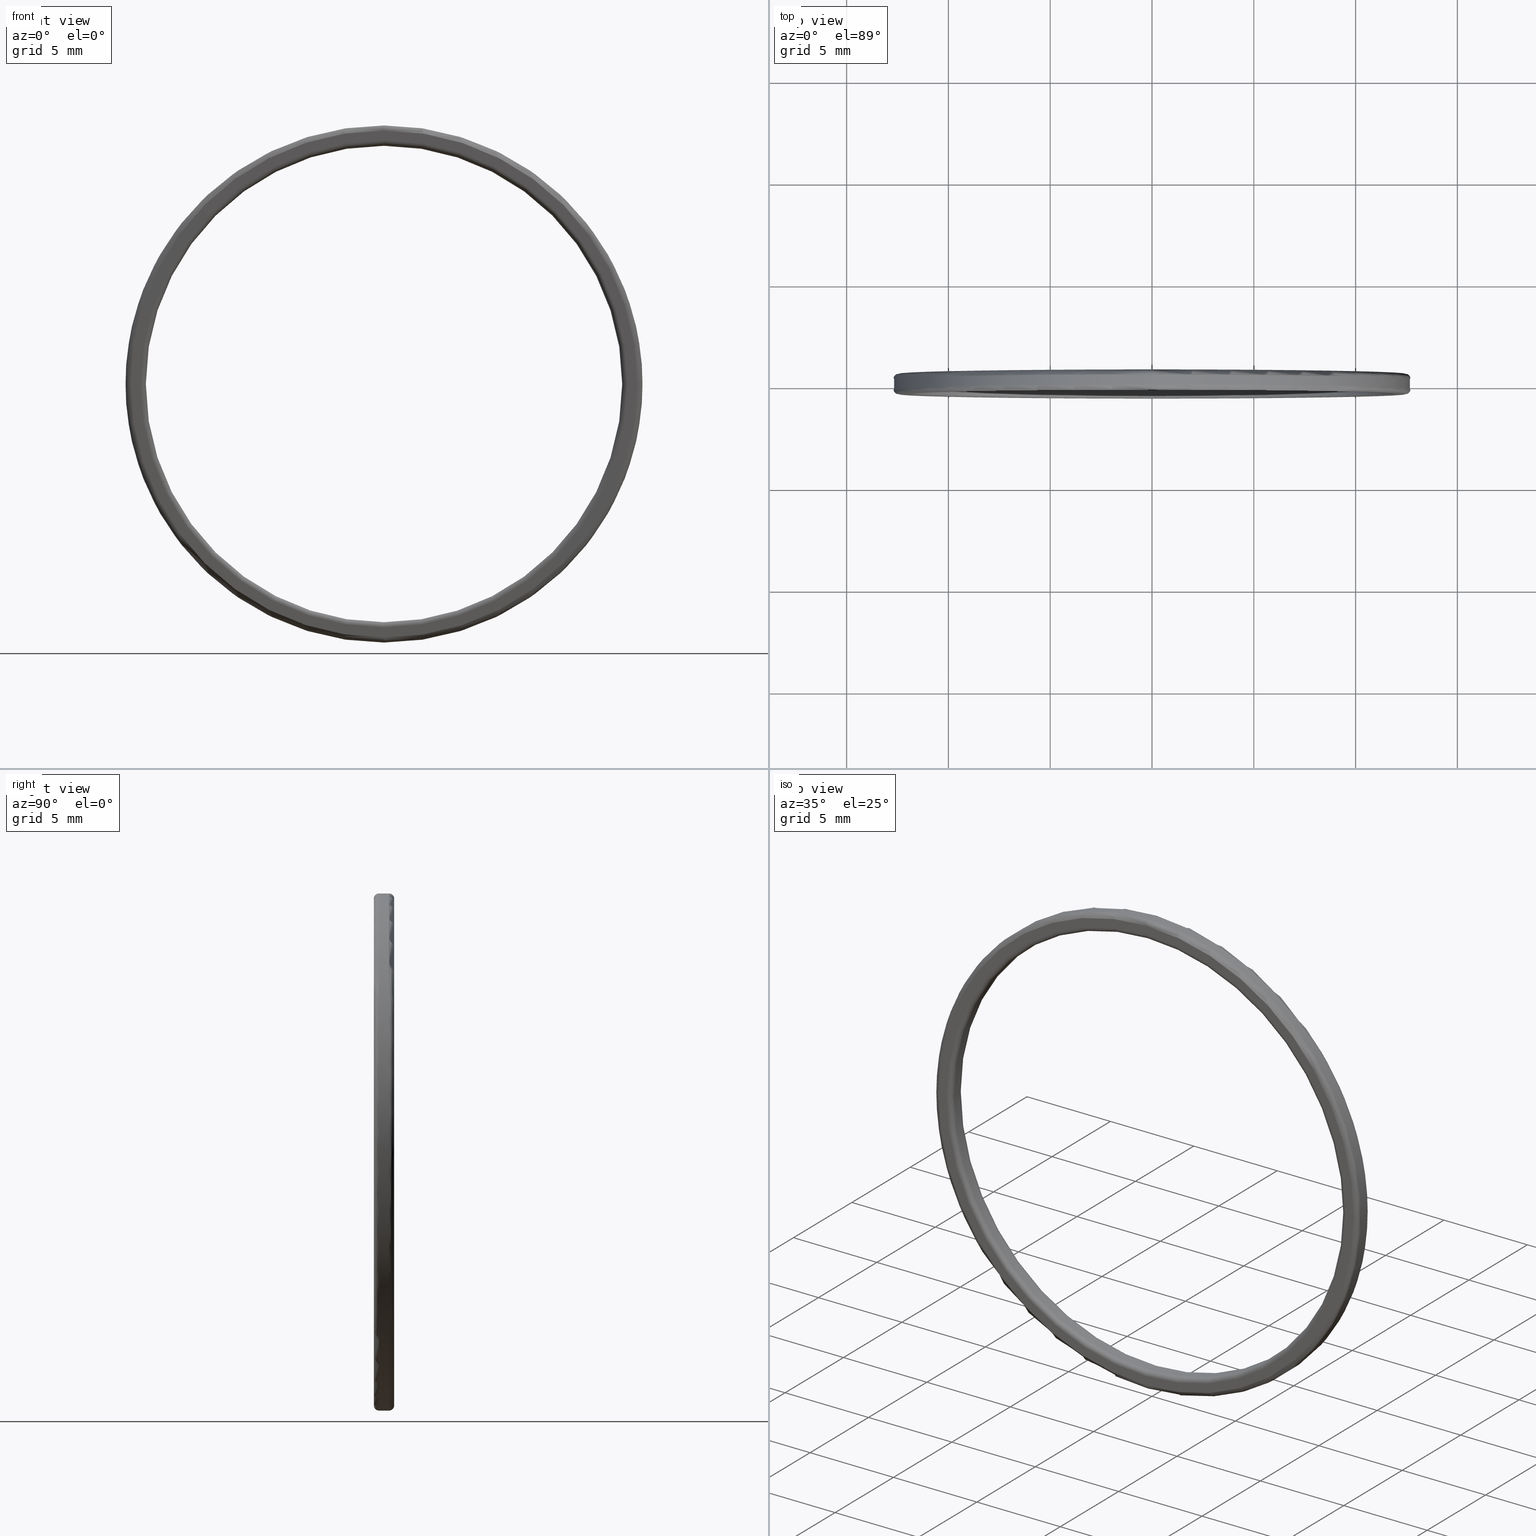
[diagram: canonical four-view strip — front | top / right | iso, engineering-drawing reading convention]
A machine part, canonical four-view strip (front | top / right | iso — engineering-drawing reading convention). The complete STEP part file that produces these views, byte-faithful:
ISO-10303-21;
HEADER;
FILE_DESCRIPTION (( 'STEP AP203' ),
    '1' );
FILE_NAME ('1.8.5.24_ZFK-D1.0_1.0Ӣ���ط�����Ȧ.STEP',
    '2021-07-10T05:48:21',
    ( 'China' ),
    ( 'Home' ),
    'SwSTEP 2.0',
    'SolidWorks 2018',
    '' );
FILE_SCHEMA (( 'CONFIG_CONTROL_DESIGN' ));
ENDSEC;

DATA;
#1 = CIRCLE ( 'NONE', #361, 11.94999999999999929 ) ;
#2 = ORIENTED_EDGE ( 'NONE', *, *, #273, .T. ) ;
#3 = DIRECTION ( 'NONE',  ( 0.0000000000000000000, 0.0000000000000000000, 1.000000000000000000 ) ) ;
#4 = DESIGN_CONTEXT ( 'detailed design', #188, 'design' ) ;
#5 = CARTESIAN_POINT ( 'NONE',  ( 0.0000000000000000000, 0.2499999999999985012, 0.0000000000000000000 ) ) ;
#6 = DIRECTION ( 'NONE',  ( 0.0000000000000000000, 0.0000000000000000000, -1.000000000000000000 ) ) ;
#7 = AXIS2_PLACEMENT_3D ( 'NONE', #276, #204, #415 ) ;
#9 = VERTEX_POINT ( 'NONE', #224 ) ;
#8 = DIRECTION ( 'NONE',  ( -1.000000000000000000, -0.0000000000000000000, -0.0000000000000000000 ) ) ;
#10 = CARTESIAN_POINT ( 'NONE',  ( 0.0000000000000000000, -0.2500000000000011102, 12.69999999999999929 ) ) ;
#11 = DIRECTION ( 'NONE',  ( 0.0000000000000000000, 0.0000000000000000000, 1.000000000000000000 ) ) ;
#12 = PERSON_AND_ORGANIZATION_ROLE ( 'design_supplier' ) ;
#13 = DIRECTION ( 'NONE',  ( -0.0000000000000000000, 1.000000000000000000, -0.0000000000000000000 ) ) ;
#14 = CIRCLE ( 'NONE', #152, 0.2500000000000002220 ) ;
#15 = ORIENTED_EDGE ( 'NONE', *, *, #187, .T. ) ;
#16 = DIRECTION ( 'NONE',  ( 0.0000000000000000000, -1.000000000000000000, 0.0000000000000000000 ) ) ;
#17 = DIRECTION ( 'NONE',  ( -0.0000000000000000000, 1.000000000000000000, -0.0000000000000000000 ) ) ;
#18 = TOROIDAL_SURFACE ( 'NONE', #342, 12.44999999999999929, 0.2500000000000000000 ) ;
#19 = ORIENTED_EDGE ( 'NONE', *, *, #56, .T. ) ;
#20 = CC_DESIGN_PERSON_AND_ORGANIZATION_ASSIGNMENT ( #61, #12, ( #222 ) ) ;
#21 = EDGE_CURVE ( 'NONE', #274, #229, #233, .T. ) ;
#22 = LINE ( 'NONE', #215, #425 ) ;
#23 = CARTESIAN_POINT ( 'NONE',  ( 0.0000000000000000000, 0.2499999999999985012, 12.69999999999999929 ) ) ;
#24 = ADVANCED_FACE ( 'NONE', ( #135 ), #103, .T. ) ;
#25 = CARTESIAN_POINT ( 'NONE',  ( 0.0000000000000000000, -0.2500000000000011102, 11.94999999999999929 ) ) ;
#26 = EDGE_CURVE ( 'NONE', #60, #33, #371, .T. ) ;
#27 = EDGE_LOOP ( 'NONE', ( #426, #409, #382, #141 ) ) ;
#28 = AXIS2_PLACEMENT_3D ( 'NONE', #396, #8, #253 ) ;
#29 = DIRECTION ( 'NONE',  ( -0.0000000000000000000, 1.000000000000000000, -0.0000000000000000000 ) ) ;
#30 = DATE_AND_TIME ( #189, #270 ) ;
#31 = APPROVAL ( #116, 'δָ��' ) ;
#32 = CIRCLE ( 'NONE', #373, 11.94999999999999929 ) ;
#33 = VERTEX_POINT ( 'NONE', #10 ) ;
#34 = AXIS2_PLACEMENT_3D ( 'NONE', #139, #317, #392 ) ;
#35 = CC_DESIGN_APPROVAL ( #269, ( #385 ) ) ;
#36 = CARTESIAN_POINT ( 'NONE',  ( 1.555301434917138433E-15, 4.847222222222231203, -12.69999999999999929 ) ) ;
#37 = TOROIDAL_SURFACE ( 'NONE', #84, 11.94999999999999929, 0.2500000000000000000 ) ;
#38 = ORIENTED_EDGE ( 'NONE', *, *, #97, .F. ) ;
#39 =( NAMED_UNIT ( * ) PLANE_ANGLE_UNIT ( ) SI_UNIT ( $, .RADIAN. ) );
#40 = EDGE_CURVE ( 'NONE', #251, #177, #22, .T. ) ;
#41 = COORDINATED_UNIVERSAL_TIME_OFFSET ( 8, 0, .AHEAD. ) ;
#43 = FACE_OUTER_BOUND ( 'NONE', #316, .T. ) ;
#42 = APPLICATION_PROTOCOL_DEFINITION ( 'international standard', 'config_control_design', 1994, #264 ) ;
#44 = ORIENTED_EDGE ( 'NONE', *, *, #378, .F. ) ;
#45 = DATE_TIME_ROLE ( 'classification_date' ) ;
#46 = EDGE_CURVE ( 'NONE', #213, #348, #297, .T. ) ;
#47 = MECHANICAL_CONTEXT ( 'NONE', #264, 'mechanical' ) ;
#48 = APPROVAL_STATUS ( 'not_yet_approved' ) ;
#49 = CARTESIAN_POINT ( 'NONE',  ( 11.69999999999999929, 0.4999999999999985012, 0.0000000000000000000 ) ) ;
#50 = CIRCLE ( 'NONE', #53, 12.69999999999999929 ) ;
#51 = ORIENTED_EDGE ( 'NONE', *, *, #267, .T. ) ;
#52 = ORIENTED_EDGE ( 'NONE', *, *, #367, .F. ) ;
#53 = AXIS2_PLACEMENT_3D ( 'NONE', #437, #362, #11 ) ;
#54 = PERSON_AND_ORGANIZATION ( #423, #154 ) ;
#55 = ORIENTED_EDGE ( 'NONE', *, *, #422, .T. ) ;
#56 = EDGE_CURVE ( 'NONE', #348, #213, #1, .T. ) ;
#57 = CIRCLE ( 'NONE', #281, 11.69999999999999929 ) ;
#58 = CIRCLE ( 'NONE', #350, 11.69999999999999929 ) ;
#60 = VERTEX_POINT ( 'NONE', #190 ) ;
#59 = DIRECTION ( 'NONE',  ( -0.0000000000000000000, 1.000000000000000000, -0.0000000000000000000 ) ) ;
#61 = PERSON_AND_ORGANIZATION ( #423, #154 ) ;
#62 = DIRECTION ( 'NONE',  ( 1.000000000000000000, 0.0000000000000000000, -1.224646799147353207E-16 ) ) ;
#63 = ORIENTED_EDGE ( 'NONE', *, *, #306, .T. ) ;
#64 = AXIS2_PLACEMENT_3D ( 'NONE', #379, #165, #412 ) ;
#65 = DIRECTION ( 'NONE',  ( 1.224646799147349509E-16, 0.0000000000000000000, -1.000000000000000000 ) ) ;
#66 = EDGE_CURVE ( 'NONE', #159, #33, #325, .T. ) ;
#67 = VERTEX_POINT ( 'NONE', #254 ) ;
#68 = ORIENTED_EDGE ( 'NONE', *, *, #205, .T. ) ;
#69 = DIRECTION ( 'NONE',  ( 0.0000000000000000000, -1.000000000000000000, 0.0000000000000000000 ) ) ;
#70 = APPROVAL_DATE_TIME ( #119, #269 ) ;
#71 = CIRCLE ( 'NONE', #168, 0.2500000000000002220 ) ;
#72 = ORIENTED_EDGE ( 'NONE', *, *, #46, .T. ) ;
#73 = PERSON_AND_ORGANIZATION_ROLE ( 'classification_officer' ) ;
#74 = CC_DESIGN_APPROVAL ( #214, ( #222 ) ) ;
#75 = EDGE_CURVE ( 'NONE', #9, #177, #58, .T. ) ;
#76 = FACE_OUTER_BOUND ( 'NONE', #78, .T. ) ;
#77 = ORIENTED_EDGE ( 'NONE', *, *, #66, .F. ) ;
#78 = EDGE_LOOP ( 'NONE', ( #268, #120, #193, #171 ) ) ;
#79 = EDGE_CURVE ( 'NONE', #229, #433, #394, .T. ) ;
#80 = CARTESIAN_POINT ( 'NONE',  ( 0.0000000000000000000, 0.2499999999999985012, -12.44999999999999929 ) ) ;
#81 = COORDINATED_UNIVERSAL_TIME_OFFSET ( 8, 0, .AHEAD. ) ;
#82 = ORIENTED_EDGE ( 'NONE', *, *, #107, .T. ) ;
#83 = CC_DESIGN_PERSON_AND_ORGANIZATION_ASSIGNMENT ( #343, #73, ( #99 ) ) ;
#84 = AXIS2_PLACEMENT_3D ( 'NONE', #235, #127, #198 ) ;
#85 = PRODUCT_DEFINITION_SHAPE ( 'NONE', 'NONE',  #385 ) ;
#86 = CIRCLE ( 'NONE', #369, 12.44999999999999929 ) ;
#87 = DIRECTION ( 'NONE',  ( 0.0000000000000000000, 0.0000000000000000000, -1.000000000000000000 ) ) ;
#88 = ORIENTED_EDGE ( 'NONE', *, *, #79, .F. ) ;
#89 = ORIENTED_EDGE ( 'NONE', *, *, #435, .T. ) ;
#90 = DIRECTION ( 'NONE',  ( 0.0000000000000000000, -1.000000000000000000, 0.0000000000000000000 ) ) ;
#91 = CC_DESIGN_PERSON_AND_ORGANIZATION_ASSIGNMENT ( #370, #332, ( #222 ) ) ;
#92 = DIRECTION ( 'NONE',  ( 0.0000000000000000000, 0.0000000000000000000, 1.000000000000000000 ) ) ;
#93 = AXIS2_PLACEMENT_3D ( 'NONE', #96, #454, #243 ) ;
#94 = CIRCLE ( 'NONE', #453, 0.2500000000000002220 ) ;
#95 = CLOSED_SHELL ( 'NONE', ( #219, #315, #106, #113, #328, #319, #236, #212, #321, #138, #172, #161, #250, #24 ) ) ;
#96 = CARTESIAN_POINT ( 'NONE',  ( 0.0000000000000000000, 0.2499999999999985012, 0.0000000000000000000 ) ) ;
#97 = EDGE_CURVE ( 'NONE', #449, #9, #406, .T. ) ;
#98 = ADVANCED_BREP_SHAPE_REPRESENTATION ( '1.8.5.24_ZFK-D1.0_1.0Ӣ���ط�����Ȧ', ( #185, #145 ), #248 ) ;
#99 = SECURITY_CLASSIFICATION ( '', '', #293 ) ;
#100 = CALENDAR_DATE ( 2021, 10, 7 ) ;
#101 = DIRECTION ( 'NONE',  ( 0.0000000000000000000, 0.0000000000000000000, 1.000000000000000000 ) ) ;
#102 = CIRCLE ( 'NONE', #303, 12.44999999999999929 ) ;
#103 = TOROIDAL_SURFACE ( 'NONE', #439, 12.44999999999999929, 0.2500000000000000000 ) ;
#104 = AXIS2_PLACEMENT_3D ( 'NONE', #105, #16, #186 ) ;
#105 = CARTESIAN_POINT ( 'NONE',  ( 0.0000000000000000000, -0.5000000000000015543, 0.0000000000000000000 ) ) ;
#106 = ADVANCED_FACE ( 'NONE', ( #301 ), #18, .T. ) ;
#107 = EDGE_CURVE ( 'NONE', #251, #123, #94, .T. ) ;
#108 = CARTESIAN_POINT ( 'NONE',  ( 0.0000000000000000000, 4.847222222222231203, 0.0000000000000000000 ) ) ;
#110 = VERTEX_POINT ( 'NONE', #23 ) ;
#109 = DIRECTION ( 'NONE',  ( 0.0000000000000000000, 0.0000000000000000000, -1.000000000000000000 ) ) ;
#111 = DIRECTION ( 'NONE',  ( 0.0000000000000000000, -1.000000000000000000, 0.0000000000000000000 ) ) ;
#112 = EDGE_LOOP ( 'NONE', ( #150, #44, #305, #52 ) ) ;
#113 = ADVANCED_FACE ( 'NONE', ( #130 ), #37, .T. ) ;
#114 = DIRECTION ( 'NONE',  ( 0.0000000000000000000, 0.0000000000000000000, -1.000000000000000000 ) ) ;
#115 = AXIS2_PLACEMENT_3D ( 'NONE', #336, #111, #144 ) ;
#116 = APPROVAL_STATUS ( 'not_yet_approved' ) ;
#117 = EDGE_LOOP ( 'NONE', ( #19, #72 ) ) ;
#118 = DIRECTION ( 'NONE',  ( -0.0000000000000000000, 1.000000000000000000, -0.0000000000000000000 ) ) ;
#119 = DATE_AND_TIME ( #100, #266 ) ;
#120 = ORIENTED_EDGE ( 'NONE', *, *, #354, .T. ) ;
#121 = ORIENTED_EDGE ( 'NONE', *, *, #378, .T. ) ;
#122 = FACE_OUTER_BOUND ( 'NONE', #191, .T. ) ;
#123 = VERTEX_POINT ( 'NONE', #265 ) ;
#124 = CARTESIAN_POINT ( 'NONE',  ( 1.463452924981086874E-15, -0.2500000000000011102, -11.94999999999999929 ) ) ;
#125 = AXIS2_PLACEMENT_3D ( 'NONE', #196, #17, #438 ) ;
#126 = DIRECTION ( 'NONE',  ( -0.0000000000000000000, 1.000000000000000000, -0.0000000000000000000 ) ) ;
#127 = DIRECTION ( 'NONE',  ( -0.0000000000000000000, 1.000000000000000000, -0.0000000000000000000 ) ) ;
#128 = LOCAL_TIME ( 13, 48, 21.00000000000000000, #41 ) ;
#129 = CARTESIAN_POINT ( 'NONE',  ( 0.0000000000000000000, 4.847222222222231203, 0.0000000000000000000 ) ) ;
#130 = FACE_OUTER_BOUND ( 'NONE', #402, .T. ) ;
#131 = DIRECTION ( 'NONE',  ( 0.0000000000000000000, -1.000000000000000000, 0.0000000000000000000 ) ) ;
#132 = CARTESIAN_POINT ( 'NONE',  ( 0.0000000000000000000, -0.2500000000000011102, 11.69999999999999929 ) ) ;
#133 = COORDINATED_UNIVERSAL_TIME_OFFSET ( 8, 0, .AHEAD. ) ;
#134 = AXIS2_PLACEMENT_3D ( 'NONE', #381, #62, #312 ) ;
#135 = FACE_OUTER_BOUND ( 'NONE', #112, .T. ) ;
#136 = DIRECTION ( 'NONE',  ( -0.0000000000000000000, 1.000000000000000000, -0.0000000000000000000 ) ) ;
#137 = CARTESIAN_POINT ( 'NONE',  ( 1.539993349927796539E-15, 0.4999999999999985012, 12.44999999999999929 ) ) ;
#138 = ADVANCED_FACE ( 'NONE', ( #192, #388 ), #201, .F. ) ;
#139 = CARTESIAN_POINT ( 'NONE',  ( 0.0000000000000000000, -0.2500000000000011102, 0.0000000000000000000 ) ) ;
#140 = ORIENTED_EDGE ( 'NONE', *, *, #107, .F. ) ;
#141 = ORIENTED_EDGE ( 'NONE', *, *, #46, .F. ) ;
#142 = DIRECTION ( 'NONE',  ( -0.0000000000000000000, 1.000000000000000000, -0.0000000000000000000 ) ) ;
#143 = CC_DESIGN_SECURITY_CLASSIFICATION ( #99, ( #222 ) ) ;
#144 = DIRECTION ( 'NONE',  ( 0.0000000000000000000, 0.0000000000000000000, -1.000000000000000000 ) ) ;
#145 = AXIS2_PLACEMENT_3D ( 'NONE', #288, #223, #400 ) ;
#146 = DIRECTION ( 'NONE',  ( -1.000000000000000000, 0.0000000000000000000, 0.0000000000000000000 ) ) ;
#147 = PERSON_AND_ORGANIZATION ( #423, #154 ) ;
#148 = VECTOR ( 'NONE', #324, 1000.000000000000000 ) ;
#149 = DIRECTION ( 'NONE',  ( 0.0000000000000000000, 0.0000000000000000000, -1.000000000000000000 ) ) ;
#150 = ORIENTED_EDGE ( 'NONE', *, *, #234, .F. ) ;
#151 =( NAMED_UNIT ( * ) SI_UNIT ( $, .STERADIAN. ) SOLID_ANGLE_UNIT ( ) );
#152 = AXIS2_PLACEMENT_3D ( 'NONE', #366, #339, #368 ) ;
#153 = CARTESIAN_POINT ( 'NONE',  ( 0.0000000000000000000, 0.2499999999999985012, 11.69999999999999929 ) ) ;
#154 = ORGANIZATION ( 'δָ��', 'δָ��', '' ) ;
#155 = VERTEX_POINT ( 'NONE', #300 ) ;
#156 = EDGE_LOOP ( 'NONE', ( #38, #51, #272, #55 ) ) ;
#157 = CARTESIAN_POINT ( 'NONE',  ( 0.0000000000000000000, 4.847222222222231203, 12.69999999999999929 ) ) ;
#158 = COORDINATED_UNIVERSAL_TIME_OFFSET ( 8, 0, .AHEAD. ) ;
#159 = VERTEX_POINT ( 'NONE', #237 ) ;
#160 = EDGE_CURVE ( 'NONE', #60, #67, #86, .T. ) ;
#161 = ADVANCED_FACE ( 'NONE', ( #375 ), #353, .T. ) ;
#162 = DIRECTION ( 'NONE',  ( 0.0000000000000000000, 0.0000000000000000000, 1.000000000000000000 ) ) ;
#163 = CYLINDRICAL_SURFACE ( 'NONE', #320, 11.69999999999999929 ) ;
#164 = EDGE_LOOP ( 'NONE', ( #285, #15, #440, #414 ) ) ;
#165 = DIRECTION ( 'NONE',  ( -0.0000000000000000000, 1.000000000000000000, -0.0000000000000000000 ) ) ;
#166 = CC_DESIGN_APPROVAL ( #31, ( #99 ) ) ;
#167 = CARTESIAN_POINT ( 'NONE',  ( 0.0000000000000000000, 0.2499999999999985012, 0.0000000000000000000 ) ) ;
#168 = AXIS2_PLACEMENT_3D ( 'NONE', #210, #180, #286 ) ;
#169 = PERSON_AND_ORGANIZATION ( #423, #154 ) ;
#170 = FACE_OUTER_BOUND ( 'NONE', #448, .T. ) ;
#171 = ORIENTED_EDGE ( 'NONE', *, *, #390, .F. ) ;
#172 = ADVANCED_FACE ( 'NONE', ( #220 ), #283, .T. ) ;
#173 = CARTESIAN_POINT ( 'NONE',  ( 0.0000000000000000000, -0.2500000000000011102, 0.0000000000000000000 ) ) ;
#174 = AXIS2_PLACEMENT_3D ( 'NONE', #129, #29, #280 ) ;
#175 = TOROIDAL_SURFACE ( 'NONE', #93, 12.44999999999999929, 0.2500000000000000000 ) ;
#176 = ORIENTED_EDGE ( 'NONE', *, *, #26, .T. ) ;
#177 = VERTEX_POINT ( 'NONE', #153 ) ;
#178 = DIRECTION ( 'NONE',  ( -0.0000000000000000000, 1.000000000000000000, -0.0000000000000000000 ) ) ;
#179 = DIRECTION ( 'NONE',  ( 0.0000000000000000000, 0.0000000000000000000, -1.000000000000000000 ) ) ;
#180 = DIRECTION ( 'NONE',  ( 1.000000000000000000, 0.0000000000000000000, -1.224646799147353207E-16 ) ) ;
#181 = DIRECTION ( 'NONE',  ( 0.0000000000000000000, 0.0000000000000000000, -1.000000000000000000 ) ) ;
#182 = CIRCLE ( 'NONE', #225, 11.69999999999999929 ) ;
#183 = ORIENTED_EDGE ( 'NONE', *, *, #410, .T. ) ;
#184 = CARTESIAN_POINT ( 'NONE',  ( 0.0000000000000000000, -0.2500000000000011102, 12.44999999999999929 ) ) ;
#185 = MANIFOLD_SOLID_BREP ( 'Բ��1', #95 ) ;
#186 = DIRECTION ( 'NONE',  ( 0.0000000000000000000, 0.0000000000000000000, 1.000000000000000000 ) ) ;
#187 = EDGE_CURVE ( 'NONE', #67, #159, #14, .T. ) ;
#188 = APPLICATION_CONTEXT ( 'configuration controlled 3d designs of mechanical parts and assemblies' ) ;
#189 = CALENDAR_DATE ( 2021, 10, 7 ) ;
#190 = CARTESIAN_POINT ( 'NONE',  ( 0.0000000000000000000, -0.5000000000000015543, 12.44999999999999929 ) ) ;
#191 = EDGE_LOOP ( 'NONE', ( #347, #341 ) ) ;
#192 = FACE_BOUND ( 'NONE', #117, .T. ) ;
#193 = ORIENTED_EDGE ( 'NONE', *, *, #56, .F. ) ;
#194 = CC_DESIGN_PERSON_AND_ORGANIZATION_ASSIGNMENT ( #169, #404, ( #311 ) ) ;
#195 = EDGE_CURVE ( 'NONE', #449, #155, #419, .T. ) ;
#196 = CARTESIAN_POINT ( 'NONE',  ( 0.0000000000000000000, -0.2500000000000011102, 0.0000000000000000000 ) ) ;
#197 = LINE ( 'NONE', #157, #432 ) ;
#198 = DIRECTION ( 'NONE',  ( 0.0000000000000000000, 0.0000000000000000000, 1.000000000000000000 ) ) ;
#199 = ORIENTED_EDGE ( 'NONE', *, *, #262, .T. ) ;
#200 = AXIS2_PLACEMENT_3D ( 'NONE', #357, #389, #424 ) ;
#201 = PLANE ( 'NONE',  #407 ) ;
#202 = APPROVAL_PERSON_ORGANIZATION ( #455, #214, #298 ) ;
#203 = ORIENTED_EDGE ( 'NONE', *, *, #410, .F. ) ;
#204 = DIRECTION ( 'NONE',  ( -0.0000000000000000000, 1.000000000000000000, 0.0000000000000000000 ) ) ;
#205 = EDGE_CURVE ( 'NONE', #33, #110, #197, .T. ) ;
#206 = CALENDAR_DATE ( 2021, 10, 7 ) ;
#207 = CIRCLE ( 'NONE', #28, 0.2500000000000002220 ) ;
#208 = EDGE_LOOP ( 'NONE', ( #263, #240, #68, #331 ) ) ;
#209 = CARTESIAN_POINT ( 'NONE',  ( 0.0000000000000000000, 0.2499999999999985012, 0.0000000000000000000 ) ) ;
#210 = CARTESIAN_POINT ( 'NONE',  ( 1.463452924981086874E-15, 0.2499999999999985012, 11.94999999999999929 ) ) ;
#211 = CARTESIAN_POINT ( 'NONE',  ( 0.0000000000000000000, 4.847222222222231203, 0.0000000000000000000 ) ) ;
#212 = ADVANCED_FACE ( 'NONE', ( #314, #122 ), #242, .F. ) ;
#213 = VERTEX_POINT ( 'NONE', #450 ) ;
#214 = APPROVAL ( #48, 'δָ��' ) ;
#215 = CARTESIAN_POINT ( 'NONE',  ( 0.0000000000000000000, 4.847222222222231203, 11.69999999999999929 ) ) ;
#216 = AXIS2_PLACEMENT_3D ( 'NONE', #184, #146, #299 ) ;
#217 = APPROVAL_STATUS ( 'not_yet_approved' ) ;
#218 = PERSON_AND_ORGANIZATION_ROLE ( 'creator' ) ;
#219 = ADVANCED_FACE ( 'NONE', ( #364 ), #175, .T. ) ;
#220 = FACE_OUTER_BOUND ( 'NONE', #241, .T. ) ;
#221 = DATE_TIME_ROLE ( 'creation_date' ) ;
#222 = PRODUCT_DEFINITION_FORMATION_WITH_SPECIFIED_SOURCE ( '�κ�', '', #311, .NOT_KNOWN. ) ;
#223 = DIRECTION ( 'NONE',  ( 0.0000000000000000000, 0.0000000000000000000, 1.000000000000000000 ) ) ;
#224 = CARTESIAN_POINT ( 'NONE',  ( 1.432836755002403087E-15, 0.2499999999999985012, -11.69999999999999929 ) ) ;
#225 = AXIS2_PLACEMENT_3D ( 'NONE', #258, #118, #335 ) ;
#226 = CARTESIAN_POINT ( 'NONE',  ( 0.0000000000000000000, 0.2499999999999985012, 0.0000000000000000000 ) ) ;
#227 = CYLINDRICAL_SURFACE ( 'NONE', #441, 11.69999999999999929 ) ;
#228 = ORIENTED_EDGE ( 'NONE', *, *, #205, .F. ) ;
#229 = VERTEX_POINT ( 'NONE', #247 ) ;
#230 = CC_DESIGN_PERSON_AND_ORGANIZATION_ASSIGNMENT ( #349, #218, ( #385 ) ) ;
#231 = APPROVAL_DATE_TIME ( #358, #31 ) ;
#232 = CIRCLE ( 'NONE', #417, 11.94999999999999929 ) ;
#233 = CIRCLE ( 'NONE', #334, 12.44999999999999929 ) ;
#234 = EDGE_CURVE ( 'NONE', #274, #110, #457, .T. ) ;
#235 = CARTESIAN_POINT ( 'NONE',  ( 0.0000000000000000000, -0.2500000000000011102, 0.0000000000000000000 ) ) ;
#236 = ADVANCED_FACE ( 'NONE', ( #401 ), #296, .T. ) ;
#237 = CARTESIAN_POINT ( 'NONE',  ( 1.555301434917138433E-15, -0.2500000000000011102, -12.69999999999999929 ) ) ;
#238 = CIRCLE ( 'NONE', #403, 12.69999999999999929 ) ;
#239 = CARTESIAN_POINT ( 'NONE',  ( 0.0000000000000000000, -0.2500000000000011102, 0.0000000000000000000 ) ) ;
#240 = ORIENTED_EDGE ( 'NONE', *, *, #66, .T. ) ;
#241 = EDGE_LOOP ( 'NONE', ( #443, #340, #82, #360 ) ) ;
#242 = PLANE ( 'NONE',  #7 ) ;
#243 = DIRECTION ( 'NONE',  ( 0.0000000000000000000, 0.0000000000000000000, -1.000000000000000000 ) ) ;
#244 = COORDINATED_UNIVERSAL_TIME_OFFSET ( 8, 0, .AHEAD. ) ;
#245 = CIRCLE ( 'NONE', #34, 11.69999999999999929 ) ;
#246 = ORIENTED_EDGE ( 'NONE', *, *, #21, .T. ) ;
#247 = CARTESIAN_POINT ( 'NONE',  ( 0.0000000000000000000, 0.4999999999999985012, -12.44999999999999929 ) ) ;
#248 =( GEOMETRIC_REPRESENTATION_CONTEXT ( 3 ) GLOBAL_UNCERTAINTY_ASSIGNED_CONTEXT ( ( #261 ) ) GLOBAL_UNIT_ASSIGNED_CONTEXT ( ( #399, #39, #151 ) ) REPRESENTATION_CONTEXT ( 'NONE', 'WORKASPACE' ) );
#249 = ORIENTED_EDGE ( 'NONE', *, *, #40, .F. ) ;
#250 = ADVANCED_FACE ( 'NONE', ( #330 ), #413, .T. ) ;
#251 = VERTEX_POINT ( 'NONE', #132 ) ;
#252 = DIRECTION ( 'NONE',  ( 0.0000000000000000000, -1.000000000000000000, 0.0000000000000000000 ) ) ;
#253 = DIRECTION ( 'NONE',  ( 0.0000000000000000000, 0.0000000000000000000, 1.000000000000000000 ) ) ;
#254 = CARTESIAN_POINT ( 'NONE',  ( 1.539993349927796539E-15, -0.5000000000000015543, -12.44999999999999929 ) ) ;
#255 = DATE_AND_TIME ( #313, #128 ) ;
#256 = CIRCLE ( 'NONE', #104, 12.44999999999999929 ) ;
#257 = EDGE_LOOP ( 'NONE', ( #372, #395, #203, #88 ) ) ;
#258 = CARTESIAN_POINT ( 'NONE',  ( 0.0000000000000000000, 0.2499999999999985012, 0.0000000000000000000 ) ) ;
#259 = AXIS2_PLACEMENT_3D ( 'NONE', #80, #344, #446 ) ;
#260 = CARTESIAN_POINT ( 'NONE',  ( 1.432836755002403087E-15, -0.2500000000000011102, -11.69999999999999929 ) ) ;
#261 = UNCERTAINTY_MEASURE_WITH_UNIT (LENGTH_MEASURE( 1.000000000000000082E-05 ), #399, 'distance_accuracy_value', 'NONE');
#262 = EDGE_CURVE ( 'NONE', #123, #155, #32, .T. ) ;
#263 = ORIENTED_EDGE ( 'NONE', *, *, #363, .F. ) ;
#264 = APPLICATION_CONTEXT ( 'configuration controlled 3d designs of mechanical parts and assemblies' ) ;
#265 = CARTESIAN_POINT ( 'NONE',  ( 0.0000000000000000000, -0.5000000000000013323, 11.94999999999999929 ) ) ;
#266 = LOCAL_TIME ( 13, 48, 21.00000000000000000, #158 ) ;
#267 = EDGE_CURVE ( 'NONE', #449, #251, #245, .T. ) ;
#268 = ORIENTED_EDGE ( 'NONE', *, *, #422, .F. ) ;
#269 = APPROVAL ( #217, 'δָ��' ) ;
#270 = LOCAL_TIME ( 13, 48, 21.00000000000000000, #81 ) ;
#271 = CIRCLE ( 'NONE', #445, 12.69999999999999929 ) ;
#272 = ORIENTED_EDGE ( 'NONE', *, *, #40, .T. ) ;
#273 = EDGE_CURVE ( 'NONE', #251, #449, #57, .T. ) ;
#274 = VERTEX_POINT ( 'NONE', #137 ) ;
#275 = DIRECTION ( 'NONE',  ( -0.0000000000000000000, 1.000000000000000000, -0.0000000000000000000 ) ) ;
#276 = CARTESIAN_POINT ( 'NONE',  ( 11.69999999999999929, -0.5000000000000015543, 0.0000000000000000000 ) ) ;
#277 = DATE_AND_TIME ( #206, #452 ) ;
#278 = EDGE_LOOP ( 'NONE', ( #326, #416, #176, #77 ) ) ;
#279 = ORIENTED_EDGE ( 'NONE', *, *, #97, .T. ) ;
#280 = DIRECTION ( 'NONE',  ( 0.0000000000000000000, 0.0000000000000000000, 1.000000000000000000 ) ) ;
#281 = AXIS2_PLACEMENT_3D ( 'NONE', #173, #391, #101 ) ;
#282 = DIRECTION ( 'NONE',  ( 0.0000000000000000000, 0.0000000000000000000, -1.000000000000000000 ) ) ;
#283 = TOROIDAL_SURFACE ( 'NONE', #431, 11.94999999999999929, 0.2500000000000000000 ) ;
#285 = ORIENTED_EDGE ( 'NONE', *, *, #421, .F. ) ;
#284 = CARTESIAN_POINT ( 'NONE',  ( 1.555301434917138433E-15, 0.2499999999999985012, -12.69999999999999929 ) ) ;
#286 = DIRECTION ( 'NONE',  ( -1.224646799147349509E-16, 0.0000000000000000000, -1.000000000000000000 ) ) ;
#287 = DIRECTION ( 'NONE',  ( 0.0000000000000000000, 0.0000000000000000000, 1.000000000000000000 ) ) ;
#288 = CARTESIAN_POINT ( 'NONE',  ( 0.0000000000000000000, 0.0000000000000000000, 0.0000000000000000000 ) ) ;
#289 = ORIENTED_EDGE ( 'NONE', *, *, #195, .T. ) ;
#290 = EDGE_LOOP ( 'NONE', ( #199, #63 ) ) ;
#291 = CARTESIAN_POINT ( 'NONE',  ( 0.0000000000000000000, 0.2499999999999985012, 0.0000000000000000000 ) ) ;
#292 = CARTESIAN_POINT ( 'NONE',  ( 0.0000000000000000000, 0.2499999999999985012, 0.0000000000000000000 ) ) ;
#293 = SECURITY_CLASSIFICATION_LEVEL ( 'unclassified' ) ;
#294 = DIRECTION ( 'NONE',  ( -0.0000000000000000000, 1.000000000000000000, -0.0000000000000000000 ) ) ;
#295 = LOCAL_TIME ( 13, 48, 21.00000000000000000, #133 ) ;
#296 = CYLINDRICAL_SURFACE ( 'NONE', #174, 12.69999999999999929 ) ;
#297 = CIRCLE ( 'NONE', #115, 11.94999999999999929 ) ;
#298 = APPROVAL_ROLE ( '' ) ;
#299 = DIRECTION ( 'NONE',  ( 0.0000000000000000000, 0.0000000000000000000, 1.000000000000000000 ) ) ;
#300 = CARTESIAN_POINT ( 'NONE',  ( 1.463452924981086874E-15, -0.5000000000000013323, -11.94999999999999929 ) ) ;
#301 = FACE_OUTER_BOUND ( 'NONE', #164, .T. ) ;
#302 = CC_DESIGN_DATE_AND_TIME_ASSIGNMENT ( #30, #221, ( #385 ) ) ;
#303 = AXIS2_PLACEMENT_3D ( 'NONE', #327, #318, #109 ) ;
#304 = DIRECTION ( 'NONE',  ( -0.0000000000000000000, 1.000000000000000000, -0.0000000000000000000 ) ) ;
#305 = ORIENTED_EDGE ( 'NONE', *, *, #79, .T. ) ;
#306 = EDGE_CURVE ( 'NONE', #155, #123, #232, .T. ) ;
#307 = CARTESIAN_POINT ( 'NONE',  ( 0.0000000000000000000, -0.5000000000000015543, 0.0000000000000000000 ) ) ;
#308 = DIRECTION ( 'NONE',  ( 0.0000000000000000000, 0.0000000000000000000, 1.000000000000000000 ) ) ;
#309 = VECTOR ( 'NONE', #411, 1000.000000000000000 ) ;
#310 = AXIS2_PLACEMENT_3D ( 'NONE', #167, #131, #282 ) ;
#311 = PRODUCT ( '1.8.5.24_ZFK-D1.0_1.0Ӣ���ط�����Ȧ', '1.8.5.24_ZFK-D1.0_1.0Ӣ���ط�����Ȧ', '', ( #47 ) ) ;
#312 = DIRECTION ( 'NONE',  ( -1.224646799147349509E-16, 0.0000000000000000000, -1.000000000000000000 ) ) ;
#313 = CALENDAR_DATE ( 2021, 10, 7 ) ;
#314 = FACE_BOUND ( 'NONE', #290, .T. ) ;
#315 = ADVANCED_FACE ( 'NONE', ( #76 ), #338, .T. ) ;
#316 = EDGE_LOOP ( 'NONE', ( #2, #279, #355, #249 ) ) ;
#317 = DIRECTION ( 'NONE',  ( 0.0000000000000000000, -1.000000000000000000, 0.0000000000000000000 ) ) ;
#318 = DIRECTION ( 'NONE',  ( -0.0000000000000000000, 1.000000000000000000, -0.0000000000000000000 ) ) ;
#319 = ADVANCED_FACE ( 'NONE', ( #170 ), #408, .T. ) ;
#320 = AXIS2_PLACEMENT_3D ( 'NONE', #108, #142, #3 ) ;
#321 = ADVANCED_FACE ( 'NONE', ( #323 ), #163, .F. ) ;
#322 = CC_DESIGN_DATE_AND_TIME_ASSIGNMENT ( #277, #45, ( #99 ) ) ;
#323 = FACE_OUTER_BOUND ( 'NONE', #156, .T. ) ;
#325 = CIRCLE ( 'NONE', #125, 12.69999999999999929 ) ;
#324 = DIRECTION ( 'NONE',  ( -0.0000000000000000000, 1.000000000000000000, -0.0000000000000000000 ) ) ;
#326 = ORIENTED_EDGE ( 'NONE', *, *, #187, .F. ) ;
#327 = CARTESIAN_POINT ( 'NONE',  ( 0.0000000000000000000, 0.4999999999999985012, 0.0000000000000000000 ) ) ;
#328 = ADVANCED_FACE ( 'NONE', ( #43 ), #227, .F. ) ;
#329 = CALENDAR_DATE ( 2021, 10, 7 ) ;
#330 = FACE_OUTER_BOUND ( 'NONE', #27, .T. ) ;
#331 = ORIENTED_EDGE ( 'NONE', *, *, #367, .T. ) ;
#332 = PERSON_AND_ORGANIZATION_ROLE ( 'creator' ) ;
#333 = DIRECTION ( 'NONE',  ( 0.0000000000000000000, -1.000000000000000000, 0.0000000000000000000 ) ) ;
#334 = AXIS2_PLACEMENT_3D ( 'NONE', #436, #294, #181 ) ;
#335 = DIRECTION ( 'NONE',  ( 0.0000000000000000000, 0.0000000000000000000, -1.000000000000000000 ) ) ;
#336 = CARTESIAN_POINT ( 'NONE',  ( 0.0000000000000000000, 0.4999999999999985012, 0.0000000000000000000 ) ) ;
#337 = CARTESIAN_POINT ( 'NONE',  ( 0.0000000000000000000, -0.2500000000000011102, 0.0000000000000000000 ) ) ;
#338 = TOROIDAL_SURFACE ( 'NONE', #345, 11.94999999999999929, 0.2500000000000000000 ) ;
#339 = DIRECTION ( 'NONE',  ( 1.000000000000000000, 0.0000000000000000000, 1.224646799147353207E-16 ) ) ;
#340 = ORIENTED_EDGE ( 'NONE', *, *, #273, .F. ) ;
#341 = ORIENTED_EDGE ( 'NONE', *, *, #421, .T. ) ;
#342 = AXIS2_PLACEMENT_3D ( 'NONE', #337, #275, #444 ) ;
#343 = PERSON_AND_ORGANIZATION ( #423, #154 ) ;
#344 = DIRECTION ( 'NONE',  ( -1.000000000000000000, -0.0000000000000000000, -0.0000000000000000000 ) ) ;
#345 = AXIS2_PLACEMENT_3D ( 'NONE', #209, #69, #179 ) ;
#346 = DIRECTION ( 'NONE',  ( 0.0000000000000000000, 0.0000000000000000000, 1.000000000000000000 ) ) ;
#347 = ORIENTED_EDGE ( 'NONE', *, *, #160, .T. ) ;
#348 = VERTEX_POINT ( 'NONE', #356 ) ;
#349 = PERSON_AND_ORGANIZATION ( #423, #154 ) ;
#350 = AXIS2_PLACEMENT_3D ( 'NONE', #226, #126, #87 ) ;
#351 = DIRECTION ( 'NONE',  ( 0.0000000000000000000, -1.000000000000000000, 0.0000000000000000000 ) ) ;
#352 = DIRECTION ( 'NONE',  ( 0.0000000000000000000, 0.0000000000000000000, 1.000000000000000000 ) ) ;
#353 = TOROIDAL_SURFACE ( 'NONE', #64, 12.44999999999999929, 0.2500000000000000000 ) ;
#354 = EDGE_CURVE ( 'NONE', #177, #213, #71, .T. ) ;
#355 = ORIENTED_EDGE ( 'NONE', *, *, #75, .T. ) ;
#356 = CARTESIAN_POINT ( 'NONE',  ( 0.0000000000000000000, 0.4999999999999985012, -11.94999999999999929 ) ) ;
#357 = CARTESIAN_POINT ( 'NONE',  ( 0.0000000000000000000, 4.847222222222231203, 0.0000000000000000000 ) ) ;
#358 = DATE_AND_TIME ( #329, #295 ) ;
#359 = SHAPE_DEFINITION_REPRESENTATION ( #85, #98 ) ;
#360 = ORIENTED_EDGE ( 'NONE', *, *, #306, .F. ) ;
#361 = AXIS2_PLACEMENT_3D ( 'NONE', #398, #430, #149 ) ;
#362 = DIRECTION ( 'NONE',  ( -0.0000000000000000000, 1.000000000000000000, -0.0000000000000000000 ) ) ;
#363 = EDGE_CURVE ( 'NONE', #159, #433, #387, .T. ) ;
#364 = FACE_OUTER_BOUND ( 'NONE', #257, .T. ) ;
#365 = ORIENTED_EDGE ( 'NONE', *, *, #267, .F. ) ;
#366 = CARTESIAN_POINT ( 'NONE',  ( 1.524685264938454646E-15, -0.2500000000000011102, -12.44999999999999929 ) ) ;
#367 = EDGE_CURVE ( 'NONE', #110, #433, #238, .T. ) ;
#368 = DIRECTION ( 'NONE',  ( 1.224646799147349509E-16, 0.0000000000000000000, -1.000000000000000000 ) ) ;
#369 = AXIS2_PLACEMENT_3D ( 'NONE', #307, #90, #346 ) ;
#370 = PERSON_AND_ORGANIZATION ( #423, #154 ) ;
#371 = CIRCLE ( 'NONE', #216, 0.2500000000000002220 ) ;
#372 = ORIENTED_EDGE ( 'NONE', *, *, #21, .F. ) ;
#373 = AXIS2_PLACEMENT_3D ( 'NONE', #386, #380, #92 ) ;
#374 = CARTESIAN_POINT ( 'NONE',  ( 1.432836755002403087E-15, 4.847222222222231203, -11.69999999999999929 ) ) ;
#375 = FACE_OUTER_BOUND ( 'NONE', #278, .T. ) ;
#376 = ORIENTED_EDGE ( 'NONE', *, *, #262, .F. ) ;
#377 = DIRECTION ( 'NONE',  ( -1.000000000000000000, 0.0000000000000000000, 0.0000000000000000000 ) ) ;
#378 = EDGE_CURVE ( 'NONE', #229, #274, #102, .T. ) ;
#379 = CARTESIAN_POINT ( 'NONE',  ( 0.0000000000000000000, -0.2500000000000011102, 0.0000000000000000000 ) ) ;
#380 = DIRECTION ( 'NONE',  ( -0.0000000000000000000, 1.000000000000000000, -0.0000000000000000000 ) ) ;
#381 = CARTESIAN_POINT ( 'NONE',  ( 1.524685264938454646E-15, 0.2499999999999985012, 12.44999999999999929 ) ) ;
#382 = ORIENTED_EDGE ( 'NONE', *, *, #390, .T. ) ;
#383 = EDGE_LOOP ( 'NONE', ( #121, #246 ) ) ;
#384 = PRODUCT_RELATED_PRODUCT_CATEGORY ( 'detail', '', ( #311 ) ) ;
#385 = PRODUCT_DEFINITION ( 'δ֪', '', #222, #4 ) ;
#386 = CARTESIAN_POINT ( 'NONE',  ( 0.0000000000000000000, -0.5000000000000015543, 0.0000000000000000000 ) ) ;
#387 = LINE ( 'NONE', #36, #148 ) ;
#388 = FACE_OUTER_BOUND ( 'NONE', #383, .T. ) ;
#389 = DIRECTION ( 'NONE',  ( -0.0000000000000000000, 1.000000000000000000, -0.0000000000000000000 ) ) ;
#390 = EDGE_CURVE ( 'NONE', #9, #348, #207, .T. ) ;
#391 = DIRECTION ( 'NONE',  ( 0.0000000000000000000, -1.000000000000000000, 0.0000000000000000000 ) ) ;
#392 = DIRECTION ( 'NONE',  ( 0.0000000000000000000, 0.0000000000000000000, 1.000000000000000000 ) ) ;
#393 = AXIS2_PLACEMENT_3D ( 'NONE', #124, #451, #65 ) ;
#394 = CIRCLE ( 'NONE', #259, 0.2500000000000002220 ) ;
#395 = ORIENTED_EDGE ( 'NONE', *, *, #234, .T. ) ;
#396 = CARTESIAN_POINT ( 'NONE',  ( 0.0000000000000000000, 0.2499999999999985012, -11.94999999999999929 ) ) ;
#397 = APPROVAL_ROLE ( '' ) ;
#398 = CARTESIAN_POINT ( 'NONE',  ( 0.0000000000000000000, 0.4999999999999985012, 0.0000000000000000000 ) ) ;
#399 =( LENGTH_UNIT ( ) NAMED_UNIT ( * ) SI_UNIT ( .MILLI., .METRE. ) );
#401 = FACE_OUTER_BOUND ( 'NONE', #208, .T. ) ;
#400 = DIRECTION ( 'NONE',  ( 1.000000000000000000, 0.0000000000000000000, 0.0000000000000000000 ) ) ;
#402 = EDGE_LOOP ( 'NONE', ( #365, #289, #376, #140 ) ) ;
#403 = AXIS2_PLACEMENT_3D ( 'NONE', #5, #252, #6 ) ;
#404 = PERSON_AND_ORGANIZATION_ROLE ( 'design_owner' ) ;
#405 = DIRECTION ( 'NONE',  ( 0.0000000000000000000, -1.000000000000000000, 0.0000000000000000000 ) ) ;
#406 = LINE ( 'NONE', #374, #309 ) ;
#407 = AXIS2_PLACEMENT_3D ( 'NONE', #49, #405, #447 ) ;
#408 = CYLINDRICAL_SURFACE ( 'NONE', #200, 12.69999999999999929 ) ;
#409 = ORIENTED_EDGE ( 'NONE', *, *, #75, .F. ) ;
#410 = EDGE_CURVE ( 'NONE', #433, #110, #271, .T. ) ;
#411 = DIRECTION ( 'NONE',  ( -0.0000000000000000000, 1.000000000000000000, -0.0000000000000000000 ) ) ;
#412 = DIRECTION ( 'NONE',  ( 0.0000000000000000000, 0.0000000000000000000, 1.000000000000000000 ) ) ;
#413 = TOROIDAL_SURFACE ( 'NONE', #310, 11.94999999999999929, 0.2500000000000000000 ) ;
#414 = ORIENTED_EDGE ( 'NONE', *, *, #26, .F. ) ;
#416 = ORIENTED_EDGE ( 'NONE', *, *, #160, .F. ) ;
#415 = DIRECTION ( 'NONE',  ( 0.0000000000000000000, 0.0000000000000000000, 1.000000000000000000 ) ) ;
#417 = AXIS2_PLACEMENT_3D ( 'NONE', #427, #178, #352 ) ;
#418 = APPROVAL_PERSON_ORGANIZATION ( #54, #31, #397 ) ;
#419 = CIRCLE ( 'NONE', #393, 0.2500000000000002220 ) ;
#420 = ORIENTED_EDGE ( 'NONE', *, *, #363, .T. ) ;
#421 = EDGE_CURVE ( 'NONE', #67, #60, #256, .T. ) ;
#422 = EDGE_CURVE ( 'NONE', #177, #9, #182, .T. ) ;
#423 = PERSON ( 'δָ��', 'δָ��', 'δָ��', ('δָ��'), ('δָ��'), ('δָ��') ) ;
#425 = VECTOR ( 'NONE', #13, 1000.000000000000000 ) ;
#424 = DIRECTION ( 'NONE',  ( 0.0000000000000000000, 0.0000000000000000000, 1.000000000000000000 ) ) ;
#426 = ORIENTED_EDGE ( 'NONE', *, *, #354, .F. ) ;
#427 = CARTESIAN_POINT ( 'NONE',  ( 0.0000000000000000000, -0.5000000000000015543, 0.0000000000000000000 ) ) ;
#428 = APPROVAL_ROLE ( '' ) ;
#429 = APPROVAL_PERSON_ORGANIZATION ( #147, #269, #428 ) ;
#430 = DIRECTION ( 'NONE',  ( 0.0000000000000000000, -1.000000000000000000, 0.0000000000000000000 ) ) ;
#431 = AXIS2_PLACEMENT_3D ( 'NONE', #239, #59, #308 ) ;
#432 = VECTOR ( 'NONE', #304, 1000.000000000000000 ) ;
#433 = VERTEX_POINT ( 'NONE', #284 ) ;
#434 = APPLICATION_PROTOCOL_DEFINITION ( 'international standard', 'config_control_design', 1994, #188 ) ;
#435 = EDGE_CURVE ( 'NONE', #33, #159, #50, .T. ) ;
#436 = CARTESIAN_POINT ( 'NONE',  ( 0.0000000000000000000, 0.4999999999999985012, 0.0000000000000000000 ) ) ;
#437 = CARTESIAN_POINT ( 'NONE',  ( 0.0000000000000000000, -0.2500000000000011102, 0.0000000000000000000 ) ) ;
#438 = DIRECTION ( 'NONE',  ( 0.0000000000000000000, 0.0000000000000000000, 1.000000000000000000 ) ) ;
#439 = AXIS2_PLACEMENT_3D ( 'NONE', #292, #333, #114 ) ;
#440 = ORIENTED_EDGE ( 'NONE', *, *, #435, .F. ) ;
#441 = AXIS2_PLACEMENT_3D ( 'NONE', #211, #136, #287 ) ;
#442 = APPROVAL_DATE_TIME ( #255, #214 ) ;
#443 = ORIENTED_EDGE ( 'NONE', *, *, #195, .F. ) ;
#444 = DIRECTION ( 'NONE',  ( 0.0000000000000000000, 0.0000000000000000000, 1.000000000000000000 ) ) ;
#445 = AXIS2_PLACEMENT_3D ( 'NONE', #291, #351, #456 ) ;
#446 = DIRECTION ( 'NONE',  ( 0.0000000000000000000, 0.0000000000000000000, 1.000000000000000000 ) ) ;
#447 = DIRECTION ( 'NONE',  ( 0.0000000000000000000, -0.0000000000000000000, -1.000000000000000000 ) ) ;
#448 = EDGE_LOOP ( 'NONE', ( #89, #420, #183, #228 ) ) ;
#449 = VERTEX_POINT ( 'NONE', #260 ) ;
#450 = CARTESIAN_POINT ( 'NONE',  ( 1.463452924981086874E-15, 0.4999999999999985012, 11.94999999999999929 ) ) ;
#451 = DIRECTION ( 'NONE',  ( 1.000000000000000000, 0.0000000000000000000, 1.224646799147353207E-16 ) ) ;
#452 = LOCAL_TIME ( 13, 48, 21.00000000000000000, #244 ) ;
#453 = AXIS2_PLACEMENT_3D ( 'NONE', #25, #377, #162 ) ;
#454 = DIRECTION ( 'NONE',  ( 0.0000000000000000000, -1.000000000000000000, 0.0000000000000000000 ) ) ;
#455 = PERSON_AND_ORGANIZATION ( #423, #154 ) ;
#456 = DIRECTION ( 'NONE',  ( 0.0000000000000000000, 0.0000000000000000000, -1.000000000000000000 ) ) ;
#457 = CIRCLE ( 'NONE', #134, 0.2500000000000002220 ) ;
ENDSEC;
END-ISO-10303-21;
